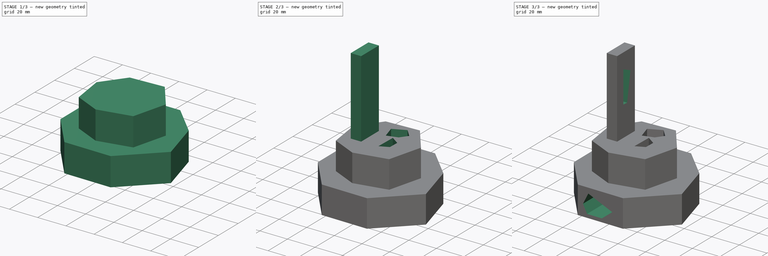
[diagram: build sequence overview — one tinted view per stage of 3, left to right]
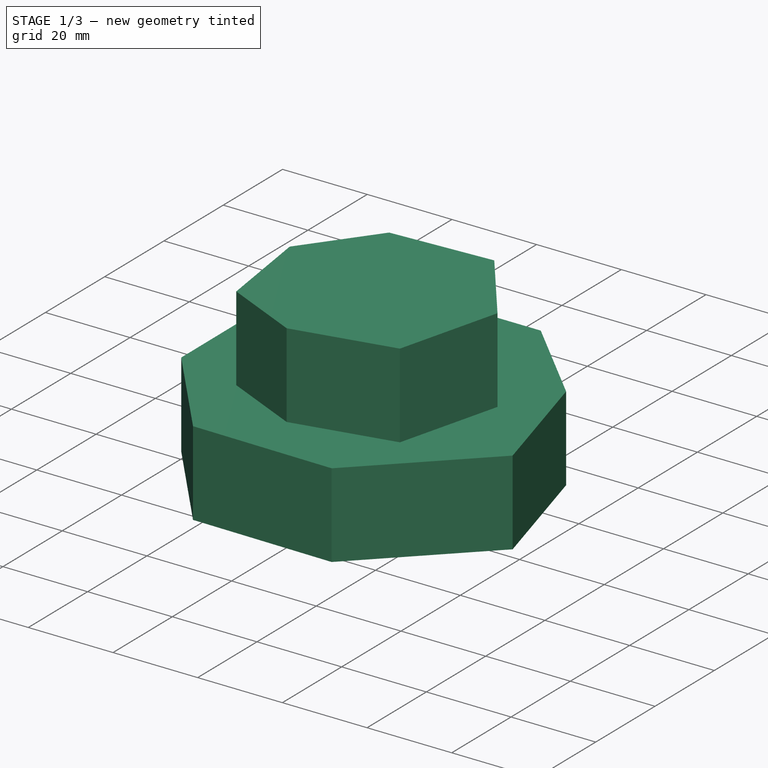
[diagram: stage 1 of 3 — iso view after this stage's code; geometry added in this stage tinted green]
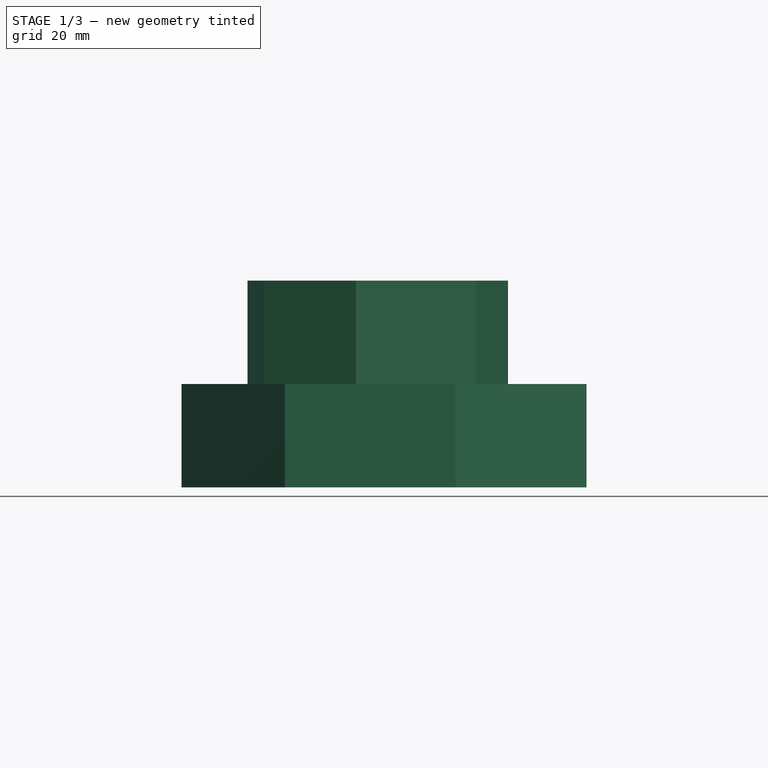
[diagram: stage 1 of 3 — front view after this stage's code; geometry added in this stage tinted green]
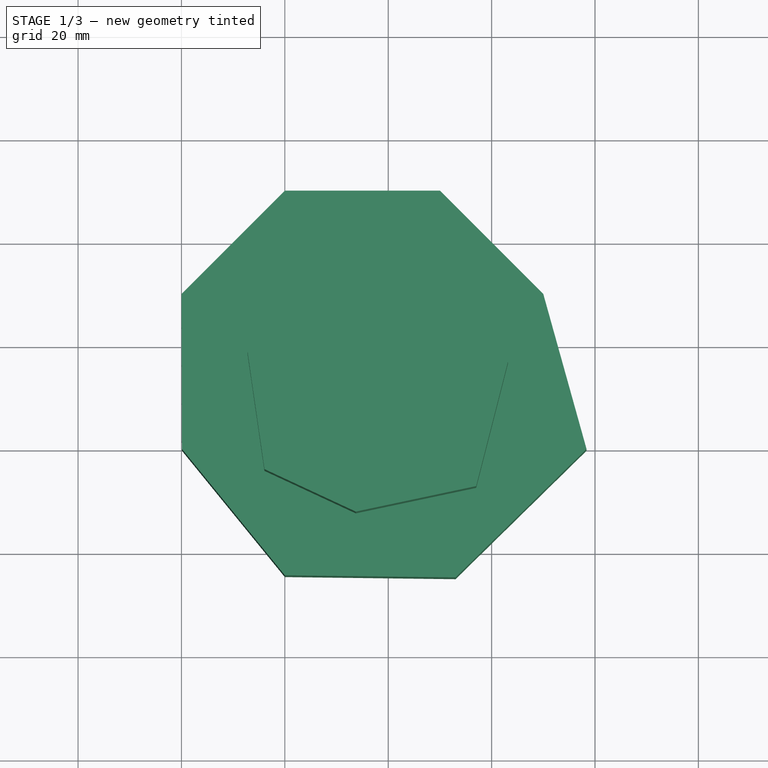
[diagram: stage 1 of 3 — top view after this stage's code; geometry added in this stage tinted green]
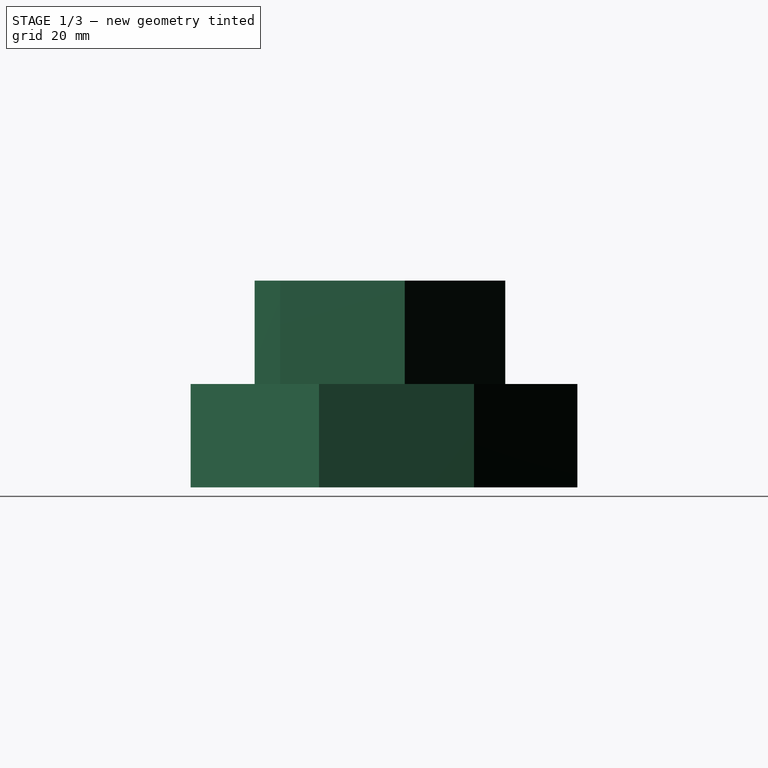
[diagram: stage 1 of 3 — right view after this stage's code; geometry added in this stage tinted green]
FCSTD DOCUMENT  (FreeCAD 0.21R33771 (Git))
Label: OJT1_T17P01_extrusions i buidats
License: All rights reserved
LicenseURL: http://en.wikipedia.org/wiki/All_rights_reserved
objects: Sketcher::SketchObject×7, PartDesign::Pocket×4, PartDesign::Pad×3, PartDesign::Body×1
note: 22 computed .brp shape members not serialized (recipe doc carries the construction recipe); baked Part::Feature solids carry a one-line shape summary decoded from their .brp

FEATURE [Sketcher::SketchObject] Sketch
  FullyConstrained = false
  MapMode = 5
  Support = -> [XY_Plane]
  sketch-geometry (8):
    g0: LineSegment StartX=-40 StartY=30 StartZ=0 EndX=-20 EndY=50 EndZ=0
    g1: LineSegment StartX=-20 StartY=50 StartZ=0 EndX=10 EndY=50 EndZ=0
    g2: LineSegment StartX=10 StartY=50 StartZ=0 EndX=30 EndY=30 EndZ=0
    g3: LineSegment StartX=30 StartY=30 StartZ=0 EndX=38.3684 EndY=0 EndZ=0
    g4: LineSegment StartX=38.3684 StartY=0 StartZ=0 EndX=13.0278 EndY=-24.8429 EndZ=0
    g5: LineSegment StartX=13.0278 StartY=-24.8429 StartZ=0 EndX=-20 EndY=-24.4342 EndZ=0
    g6: LineSegment StartX=-20 StartY=-24.4342 StartZ=0 EndX=-39.9013 EndY=0 EndZ=0
    g7: LineSegment StartX=-39.9013 StartY=0 StartZ=0 EndX=-40 EndY=30 EndZ=0
  constraints (7):
    c: Coincident(g0,g1)
    c: Coincident(g1,g2)
    c: Coincident(g2,g3)
    c: Coincident(g3,g4)
    c: Coincident(g4,g5)
    c: Coincident(g5,g6)
    c: Coincident(g6,g7)
FEATURE [PartDesign::Pad] Pad
  Direction = (0,0,1)
  Length = 20
  Length2 = 10
  Profile = -> Sketch
  ReferenceAxis = -> Sketch [N_Axis]
  Type = 0
FEATURE [Sketcher::SketchObject] Sketch001
  FullyConstrained = false
  MapMode = 5
  Placement = pos=(0,0,20) rot=(0,0,1;0rad)
  Support = -> [Pad]
  sketch-geometry (7):
    g0: LineSegment StartX=-15.1726 StartY=34.804 StartZ=0 EndX=-27.2274 EndY=18.5026 EndZ=0
    g1: LineSegment StartX=-27.2274 StartY=18.5026 StartZ=0 EndX=-23.9397 EndY=-4.23711 EndZ=0
    g2: LineSegment StartX=-23.9397 StartY=-4.23711 StartZ=0 EndX=-6.26845 EndY=-12.4563 EndZ=0
    g3: LineSegment StartX=-6.26845 StartY=-12.4563 StartZ=0 EndX=17.0192 EndY=-7.52478 EndZ=0
    g4: LineSegment StartX=17.0192 StartY=-7.52478 StartZ=0 EndX=23.1836 EndY=16.5848 EndZ=0
    g5: LineSegment StartX=23.1836 StartY=16.5848 StartZ=0 EndX=8.80004 EndY=36.0369 EndZ=0
    g6: LineSegment StartX=8.80004 StartY=36.0369 StartZ=0 EndX=-15.1726 EndY=34.804 EndZ=0
  constraints (7):
    c: Coincident(g0,g1)
    c: Coincident(g1,g2)
    c: Coincident(g2,g3)
    c: Coincident(g3,g4)
    c: Coincident(g4,g5)
    c: Coincident(g5,g6)
    c: Coincident(g6,g0)
FEATURE [PartDesign::Pad] Pad001
  BaseFeature = -> Pad
  Direction = (0,0,1)
  Length = 20
  Length2 = 10
  Profile = -> Sketch001
  ReferenceAxis = -> Sketch001 [N_Axis]
  Type = 0
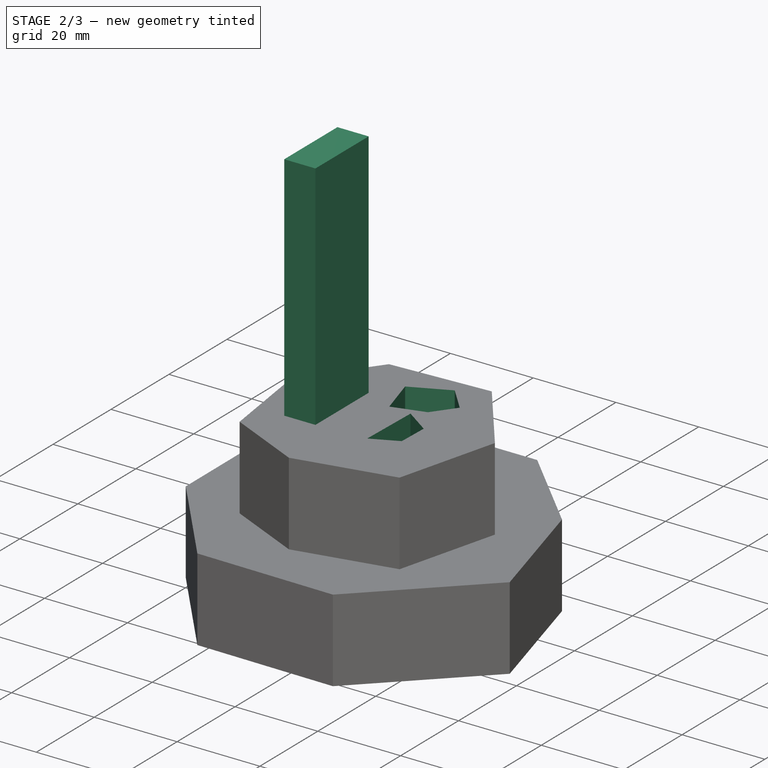
[diagram: stage 2 of 3 — iso view after this stage's code; geometry added in this stage tinted green]
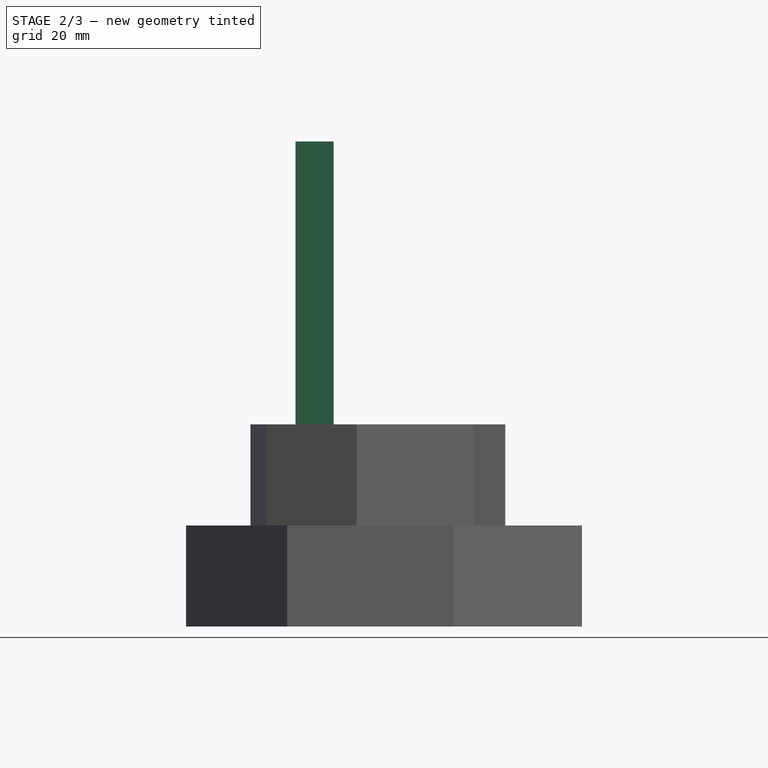
[diagram: stage 2 of 3 — front view after this stage's code; geometry added in this stage tinted green]
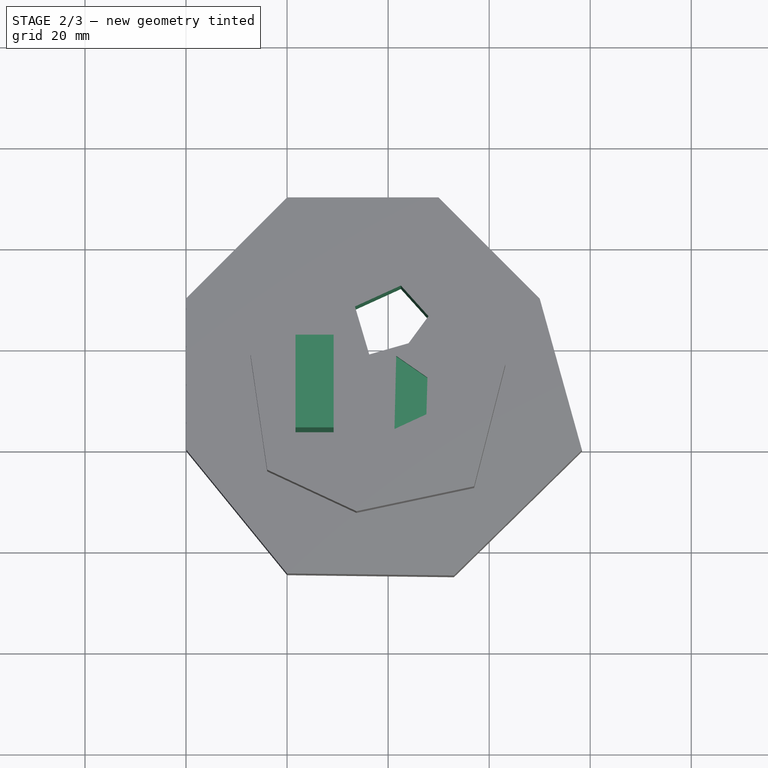
[diagram: stage 2 of 3 — top view after this stage's code; geometry added in this stage tinted green]
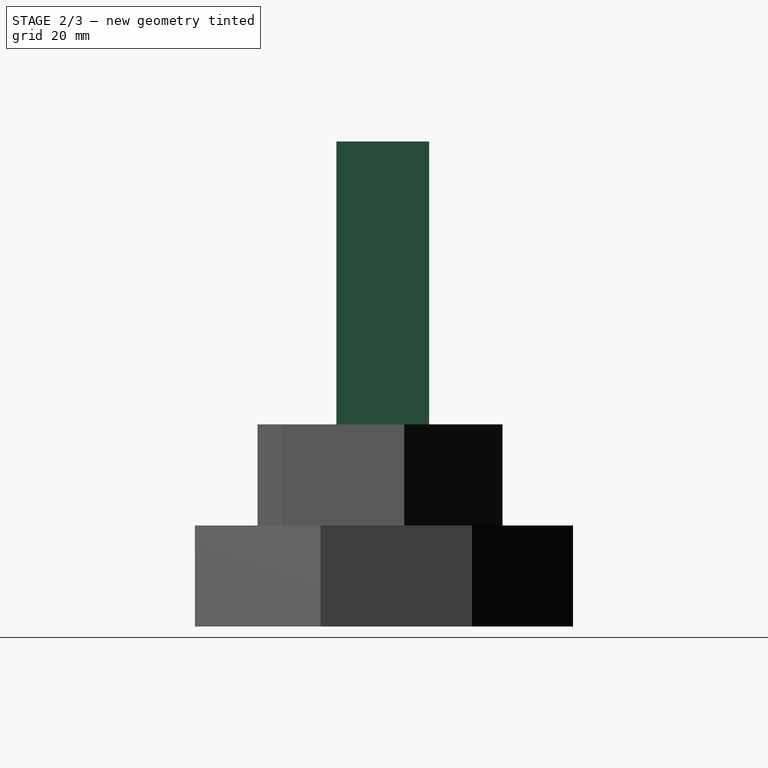
[diagram: stage 2 of 3 — right view after this stage's code; geometry added in this stage tinted green]
FEATURE [Sketcher::SketchObject] Sketch002
  FullyConstrained = false
  MapMode = 5
  Placement = pos=(0,0,40) rot=(0,0,1;0rad)
  Support = -> [Pad001]
  sketch-geometry (4):
    g0: LineSegment StartX=-18.3233 StartY=21.5163 StartZ=0 EndX=-18.3233 EndY=3.16016 EndZ=0
    g1: LineSegment StartX=-18.3233 StartY=3.16016 StartZ=0 EndX=-10.789 EndY=3.16016 EndZ=0
    g2: LineSegment StartX=-10.789 StartY=3.16016 StartZ=0 EndX=-10.789 EndY=21.5163 EndZ=0
    g3: LineSegment StartX=-10.789 StartY=21.5163 StartZ=0 EndX=-18.3233 EndY=21.5163 EndZ=0
  constraints (8):
    c: Vertical(g0)
    c: Coincident(g0,g1)
    c: Horizontal(g1)
    c: Coincident(g1,g2)
    c: Vertical(g2)
    c: Coincident(g2,g3)
    c: Coincident(g3,g0)
    c: Horizontal(g3)
FEATURE [PartDesign::Pad] Pad002
  BaseFeature = -> Pad001
  Direction = (0,0,1)
  Length = 56
  Length2 = 10
  Profile = -> Sketch002
  ReferenceAxis = -> Sketch002 [N_Axis]
  Type = 0
FEATURE [Sketcher::SketchObject] Sketch003
  FullyConstrained = false
  MapMode = 5
  Placement = pos=(0,0,40) rot=(0,0,1;0rad)
  Support = -> [Pad002]
  sketch-geometry (4):
    g0: LineSegment StartX=1.60092 StartY=18.2803 StartZ=0 EndX=1.26133 EndY=3.81368 EndZ=0
    g1: LineSegment StartX=1.26133 StartY=3.81368 StartZ=0 EndX=7.57772 EndY=6.73416 EndZ=0
    g2: LineSegment StartX=7.57772 StartY=6.73416 StartZ=0 EndX=7.78148 EndY=14.0014 EndZ=0
    g3: LineSegment StartX=7.78148 StartY=14.0014 StartZ=0 EndX=1.60092 EndY=18.2803 EndZ=0
  constraints (4):
    c: Coincident(g0,g1)
    c: Coincident(g1,g2)
    c: Coincident(g2,g3)
    c: Coincident(g3,g0)
FEATURE [PartDesign::Pocket] Pocket
  BaseFeature = -> Pad002
  Direction = (0,0,-1)
  Length = 5
  Length2 = 5
  Profile = -> Sketch003
  ReferenceAxis = -> Sketch003 [N_Axis]
  Type = 0
FEATURE [Sketcher::SketchObject] Sketch004
  FullyConstrained = false
  MapMode = 5
  Placement = pos=(0,0,40) rot=(0,0,1;0rad)
  Support = -> [Pocket]
  sketch-geometry (5):
    g0: LineSegment StartX=-6.56678 StartY=28.0659 StartZ=0 EndX=2.52973 EndY=32.2099 EndZ=0
    g1: LineSegment StartX=2.52973 StartY=32.2099 StartZ=0 EndX=7.98764 EndY=26.1455 EndZ=0
    g2: LineSegment StartX=7.98764 StartY=26.1455 StartZ=0 EndX=4.04582 EndY=20.7887 EndZ=0
    g3: LineSegment StartX=4.04582 StartY=20.7887 StartZ=0 EndX=-3.73676 EndY=18.5651 EndZ=0
    g4: LineSegment StartX=-3.73676 StartY=18.5651 StartZ=0 EndX=-6.56678 EndY=28.0659 EndZ=0
  constraints (5):
    c: Coincident(g0,g1)
    c: Coincident(g1,g2)
    c: Coincident(g2,g3)
    c: Coincident(g3,g4)
    c: Coincident(g4,g0)
FEATURE [PartDesign::Pocket] Pocket001
  BaseFeature = -> Pocket
  Direction = (0,0,-1)
  Length = 5
  Length2 = 5
  Profile = -> Sketch004
  ReferenceAxis = -> Sketch004 [N_Axis]
  Type = 1
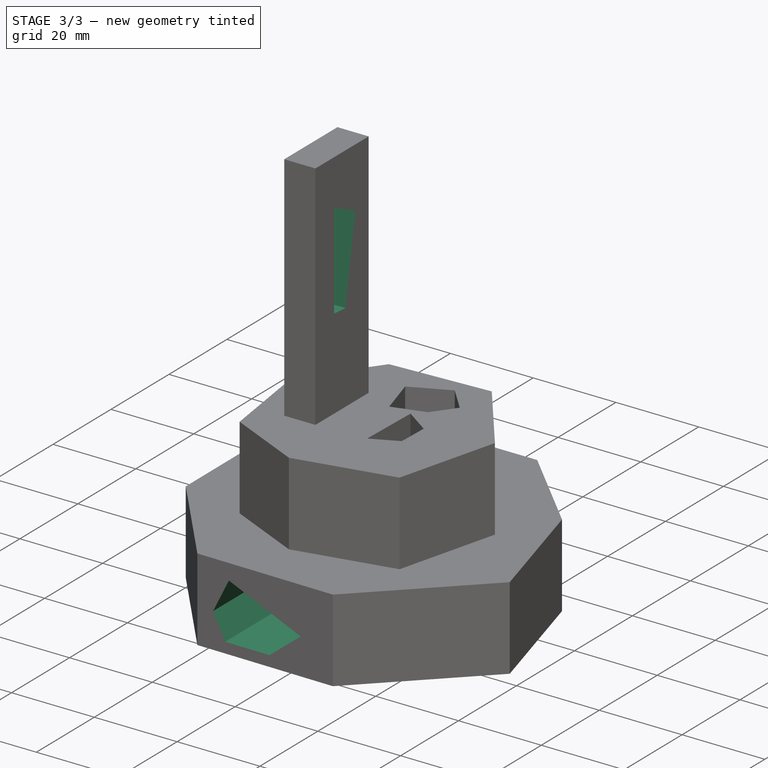
[diagram: stage 3 of 3 — iso view after this stage's code; geometry added in this stage tinted green]
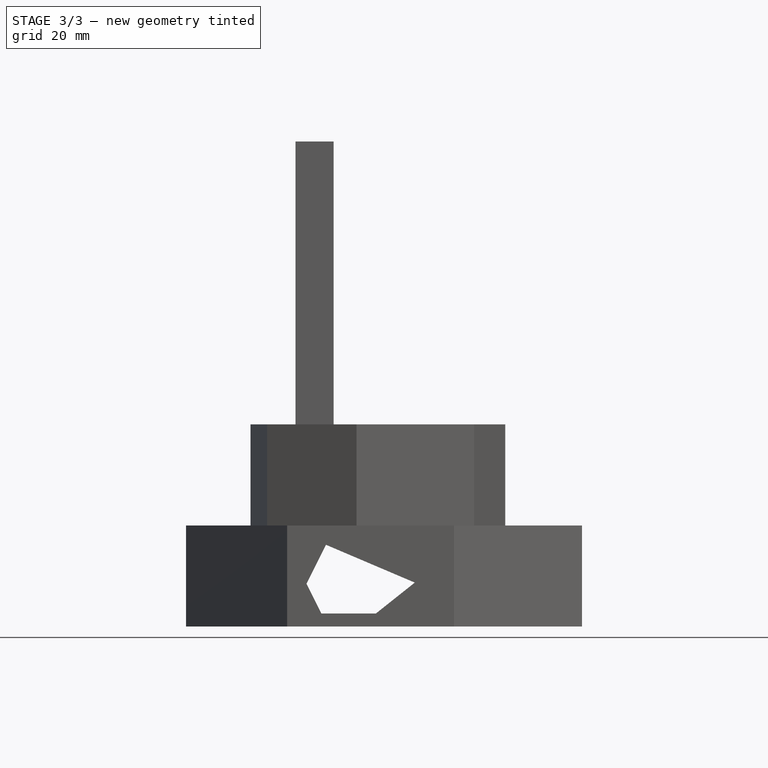
[diagram: stage 3 of 3 — front view after this stage's code; geometry added in this stage tinted green]
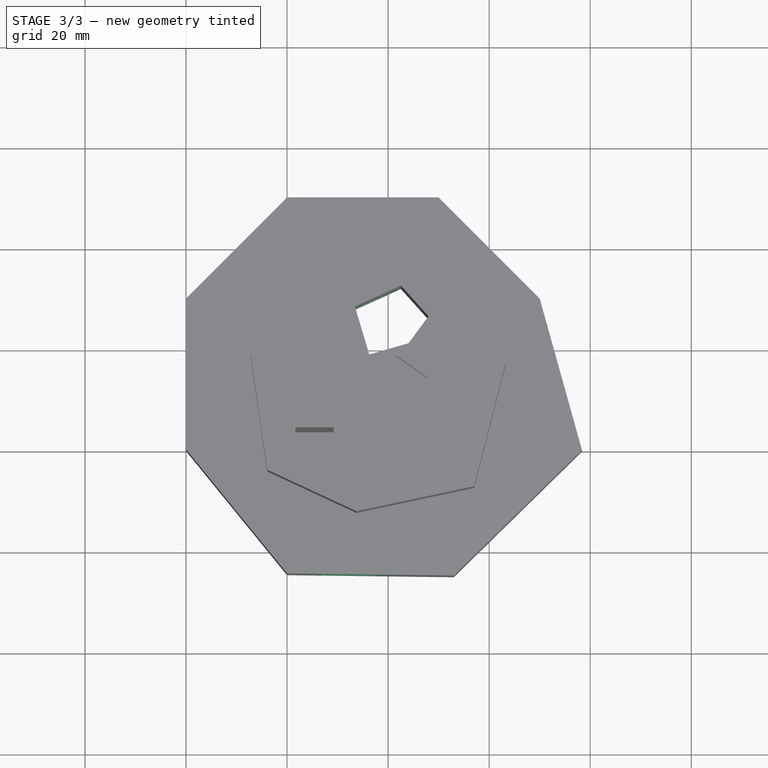
[diagram: stage 3 of 3 — top view after this stage's code; geometry added in this stage tinted green]
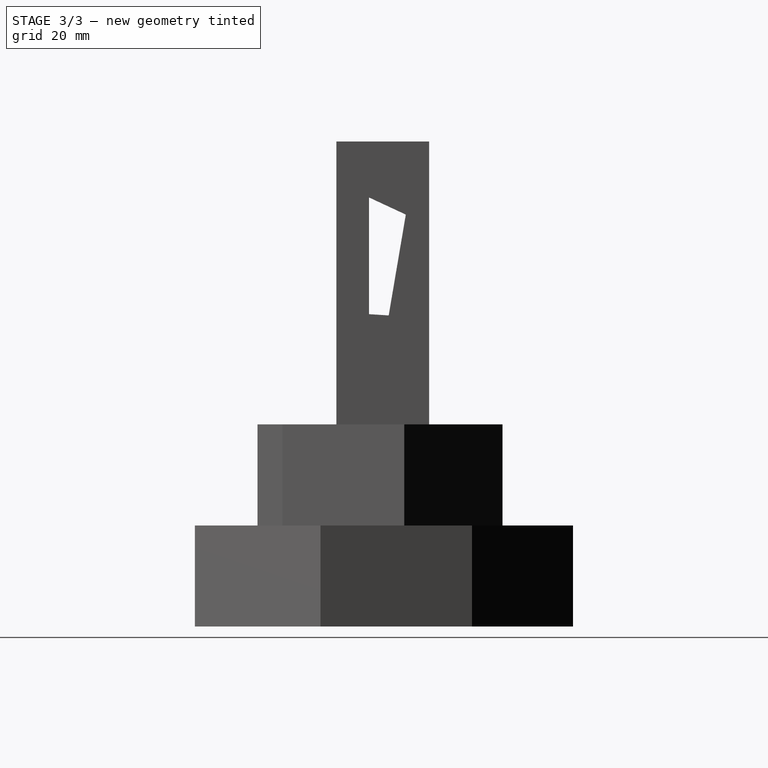
[diagram: stage 3 of 3 — right view after this stage's code; geometry added in this stage tinted green]
FEATURE [Sketcher::SketchObject] Sketch005
  FullyConstrained = false
  MapMode = 5
  Placement = pos=(-18.3233,0,0) rot=(0.57735,-0.57735,-0.57735;2.0944rad)
  Support = -> [Pocket001]
  sketch-geometry (4):
    g0: LineSegment StartX=-16.8973 StartY=81.534 StartZ=0 EndX=-9.61545 EndY=84.9239 EndZ=0
    g1: LineSegment StartX=-9.61545 StartY=84.9239 StartZ=0 EndX=-9.61545 EndY=61.8228 EndZ=0
    g2: LineSegment StartX=-9.61545 StartY=61.8228 StartZ=0 EndX=-13.5075 EndY=61.5717 EndZ=0
    g3: LineSegment StartX=-13.5075 StartY=61.5717 StartZ=0 EndX=-16.8973 EndY=81.534 EndZ=0
  constraints (5):
    c: Coincident(g0,g1)
    c: Vertical(g1)
    c: Coincident(g1,g2)
    c: Coincident(g2,g3)
    c: Coincident(g3,g0)
FEATURE [PartDesign::Pocket] Pocket002
  BaseFeature = -> Pocket001
  Direction = (1,0,0)
  Length = 5
  Length2 = 5
  Profile = -> Sketch005
  ReferenceAxis = -> Sketch005 [N_Axis]
  Type = 1
FEATURE [Sketcher::SketchObject] Sketch006
  FullyConstrained = false
  MapMode = 5
  Placement = pos=(0,50,0) rot=(0,0.707107,0.707107;3.14159rad)
  Support = -> [Pocket002]
  sketch-geometry (5):
    g0: LineSegment StartX=-5.27827 StartY=8.69159 StartZ=0 EndX=12.3023 EndY=16.1775 EndZ=0
    g1: LineSegment StartX=12.3023 StartY=16.1775 StartZ=0 EndX=16.1586 EndY=8.46475 EndZ=0
    g2: LineSegment StartX=16.1586 StartY=8.46475 StartZ=0 EndX=13.2096 EndY=2.56677 EndZ=0
    g3: LineSegment StartX=13.2096 StartY=2.56677 StartZ=0 EndX=2.43449 EndY=2.56677 EndZ=0
    g4: LineSegment StartX=2.43449 StartY=2.56677 StartZ=0 EndX=-5.27827 EndY=8.69159 EndZ=0
  constraints (6):
    c: Coincident(g0,g1)
    c: Coincident(g1,g2)
    c: Coincident(g2,g3)
    c: Horizontal(g3)
    c: Coincident(g3,g4)
    c: Coincident(g4,g0)
FEATURE [PartDesign::Pocket] Pocket003
  BaseFeature = -> Pocket002
  Direction = (0,-1,2e-16)
  Length = 5
  Length2 = 5
  Profile = -> Sketch006
  ReferenceAxis = -> Sketch006 [N_Axis]
  Type = 1
FEATURE [PartDesign::Body] Body
  Group = -> [Sketch,Pad,Sketch001,Pad001,Sketch002,Pad002,Sketch003,Pocket,Sketch004,Pocket001,Sketch005,Pocket002,Sketch006,Pocket003]
  Origin = -> Origin
  Tip = -> Pocket003
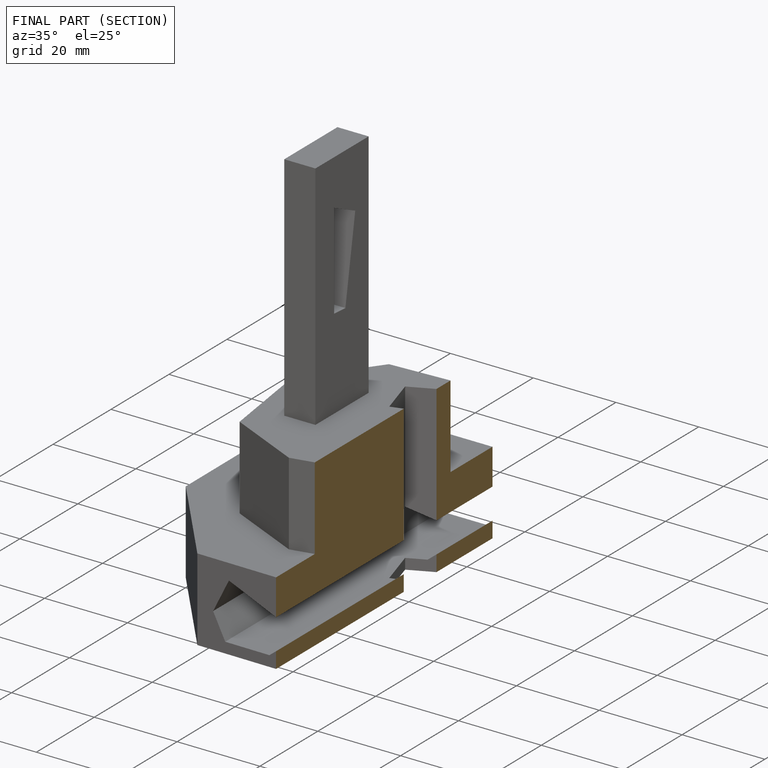
[diagram: finished part — half-section view (interior)]
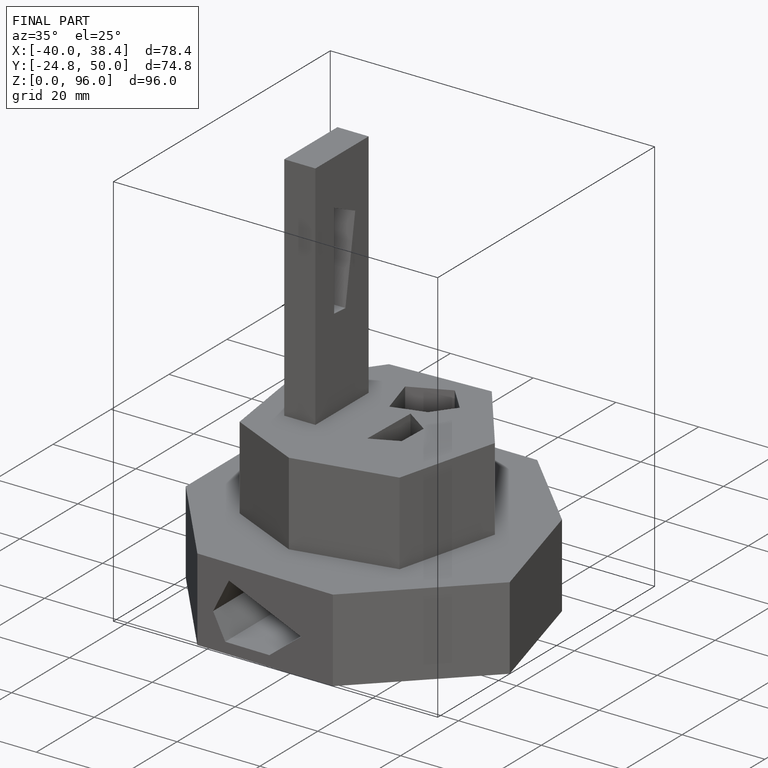
[diagram: finished part — iso view with bounding-box wireframe]
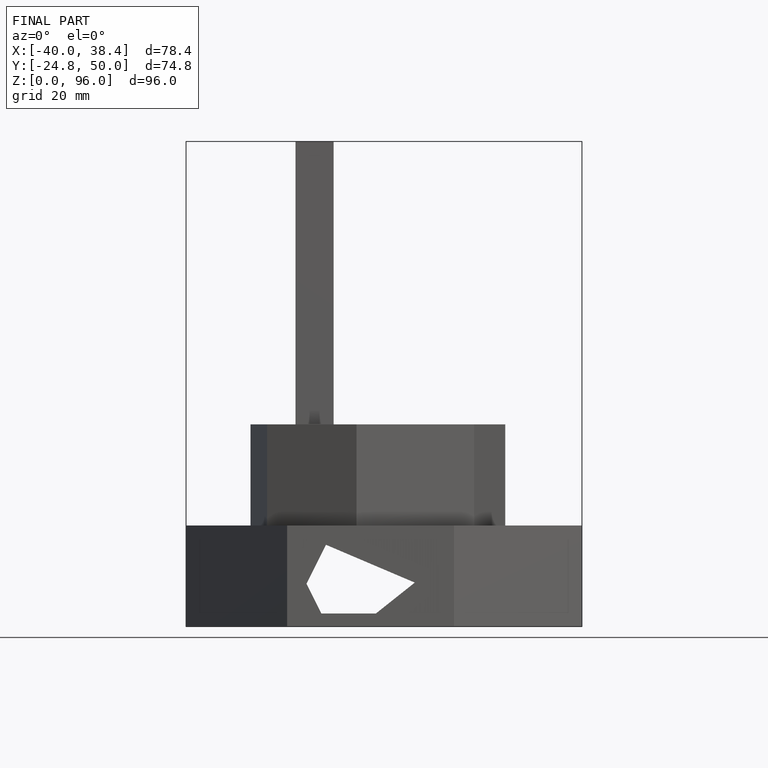
[diagram: finished part — front view with bounding-box wireframe]
